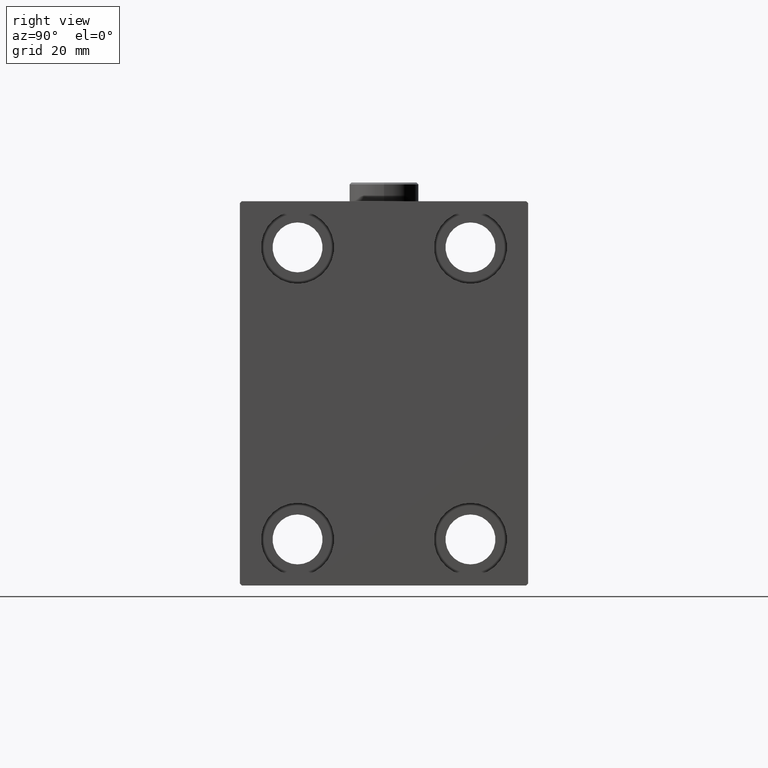
[diagram: clean part render]
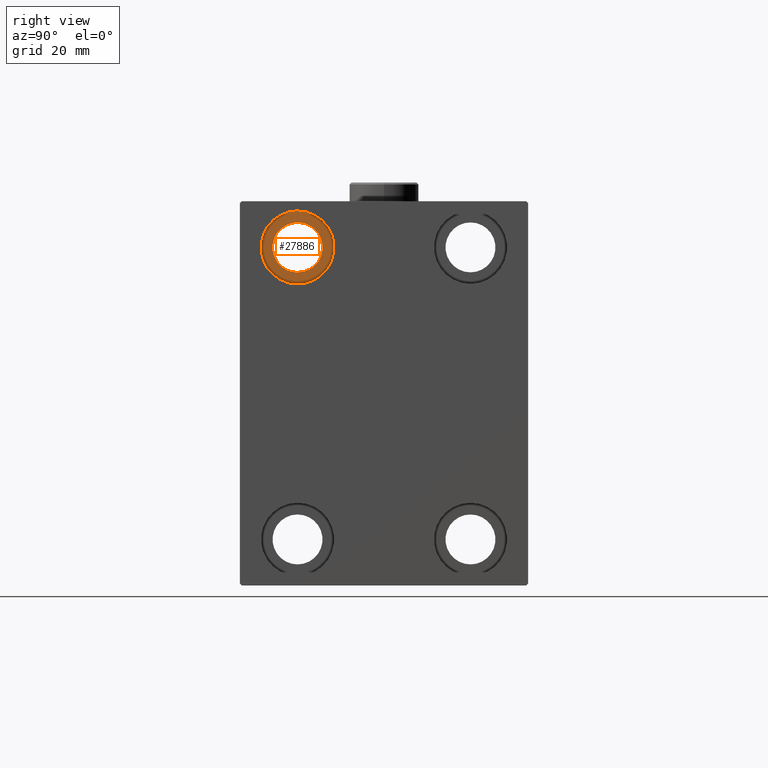
[diagram: same view with one face highlighted and labeled with its STEP entity id]
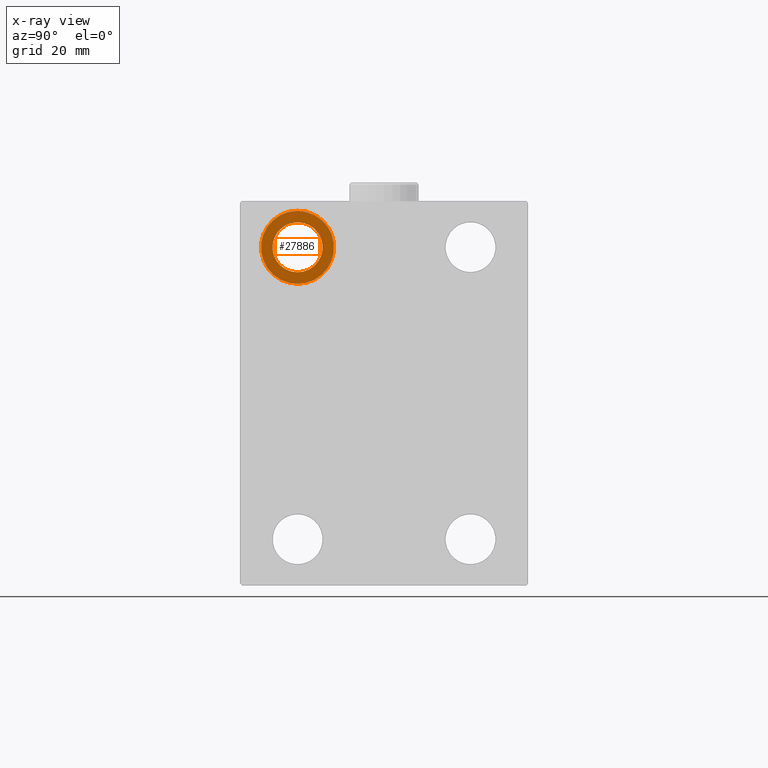
[diagram: x-ray of the same camera — body ghosted, the highlighted face saturated]
A machine part, right view. The second image highlights one B-rep face of the part: STEP entity #27886.
The next image is the same camera in x-ray: the body ghosted, the highlighted face saturated — about 0% of this face is hidden behind the body in this view.
In plain terms, the highlighted planar face has unit normal (1, 0, 0).
Its self-contained STEP definition (entity closure, byte-faithful):
#113 = EDGE_CURVE ( 'NONE', #40977, #41003, #36435, .T. ) ;
#187 = EDGE_LOOP ( 'NONE', ( #33619, #4778 ) ) ;
#611 = DIRECTION ( 'NONE',  ( 0.000000000000000000, 0.000000000000000000, 1.000000000000000000 ) ) ;
#713 = DIRECTION ( 'NONE',  ( 0.000000000000000000, 0.000000000000000000, 1.000000000000000000 ) ) ;
#2462 = CARTESIAN_POINT ( 'NONE',  ( 85.00000000000000000, -22.49999999999999645, 28.49999999999998934 ) ) ;
#2903 = EDGE_CURVE ( 'NONE', #42926, #5430, #20233, .T. ) ;
#3949 = CARTESIAN_POINT ( 'NONE',  ( 85.00000000000000000, -22.49999999999999645, 37.99999999999999289 ) ) ;
#4524 = CARTESIAN_POINT ( 'NONE',  ( 85.00000000000000000, -22.49999999999999645, 37.99999999999999289 ) ) ;
#4778 = ORIENTED_EDGE ( 'NONE', *, *, #43668, .T. ) ;
#5430 = VERTEX_POINT ( 'NONE', #2462 ) ;
#7524 = AXIS2_PLACEMENT_3D ( 'NONE', #32905, #39618, #32443 ) ;
#7547 = DIRECTION ( 'NONE',  ( 1.000000000000000000, 0.000000000000000000, -0.000000000000000000 ) ) ;
#7801 = EDGE_LOOP ( 'NONE', ( #42195, #28832 ) ) ;
#8383 = DIRECTION ( 'NONE',  ( 0.000000000000000000, 0.000000000000000000, 1.000000000000000000 ) ) ;
#11242 = PLANE ( 'NONE',  #41974 ) ;
#13002 = CIRCLE ( 'NONE', #29294, 9.500000000000001776 ) ;
#14932 = DIRECTION ( 'NONE',  ( 0.000000000000000000, 0.000000000000000000, -1.000000000000000000 ) ) ;
#17184 = AXIS2_PLACEMENT_3D ( 'NONE', #4524, #39744, #14932 ) ;
#17252 = AXIS2_PLACEMENT_3D ( 'NONE', #3949, #39171, #713 ) ;
#18179 = FACE_OUTER_BOUND ( 'NONE', #7801, .T. ) ;
#20233 = CIRCLE ( 'NONE', #17252, 9.500000000000001776 ) ;
#20497 = CARTESIAN_POINT ( 'NONE',  ( 85.00000000000000000, -22.49999999999999645, 44.49999999999999289 ) ) ;
#20725 = CARTESIAN_POINT ( 'NONE',  ( 85.00000000000000000, -22.49999999999999645, 31.49999999999999289 ) ) ;
#24526 = EDGE_CURVE ( 'NONE', #5430, #42926, #13002, .T. ) ;
#27886 = ADVANCED_FACE ( 'NONE', ( #18179, #43434 ), #11242, .T. ) ;
#28738 = CARTESIAN_POINT ( 'NONE',  ( 85.00000000000000000, -22.49999999999999645, 47.49999999999999289 ) ) ;
#28832 = ORIENTED_EDGE ( 'NONE', *, *, #2903, .F. ) ;
#29294 = AXIS2_PLACEMENT_3D ( 'NONE', #43583, #40118, #8383 ) ;
#32443 = DIRECTION ( 'NONE',  ( 0.000000000000000000, 0.000000000000000000, -1.000000000000000000 ) ) ;
#32905 = CARTESIAN_POINT ( 'NONE',  ( 85.00000000000000000, -22.49999999999999645, 37.99999999999999289 ) ) ;
#33619 = ORIENTED_EDGE ( 'NONE', *, *, #113, .T. ) ;
#36435 = CIRCLE ( 'NONE', #17184, 6.499999999999999112 ) ;
#37137 = CIRCLE ( 'NONE', #7524, 6.499999999999999112 ) ;
#39171 = DIRECTION ( 'NONE',  ( -1.000000000000000000, -0.000000000000000000, -0.000000000000000000 ) ) ;
#39291 = CARTESIAN_POINT ( 'NONE',  ( 85.00000000000000000, 0.000000000000000000, 0.000000000000000000 ) ) ;
#39618 = DIRECTION ( 'NONE',  ( -1.000000000000000000, -0.000000000000000000, -0.000000000000000000 ) ) ;
#39744 = DIRECTION ( 'NONE',  ( -1.000000000000000000, -0.000000000000000000, -0.000000000000000000 ) ) ;
#40118 = DIRECTION ( 'NONE',  ( -1.000000000000000000, -0.000000000000000000, -0.000000000000000000 ) ) ;
#40977 = VERTEX_POINT ( 'NONE', #20497 ) ;
#41003 = VERTEX_POINT ( 'NONE', #20725 ) ;
#41974 = AXIS2_PLACEMENT_3D ( 'NONE', #39291, #7547, #611 ) ;
#42195 = ORIENTED_EDGE ( 'NONE', *, *, #24526, .F. ) ;
#42926 = VERTEX_POINT ( 'NONE', #28738 ) ;
#43434 = FACE_BOUND ( 'NONE', #187, .T. ) ;
#43583 = CARTESIAN_POINT ( 'NONE',  ( 85.00000000000000000, -22.49999999999999645, 37.99999999999999289 ) ) ;
#43668 = EDGE_CURVE ( 'NONE', #41003, #40977, #37137, .T. ) ;